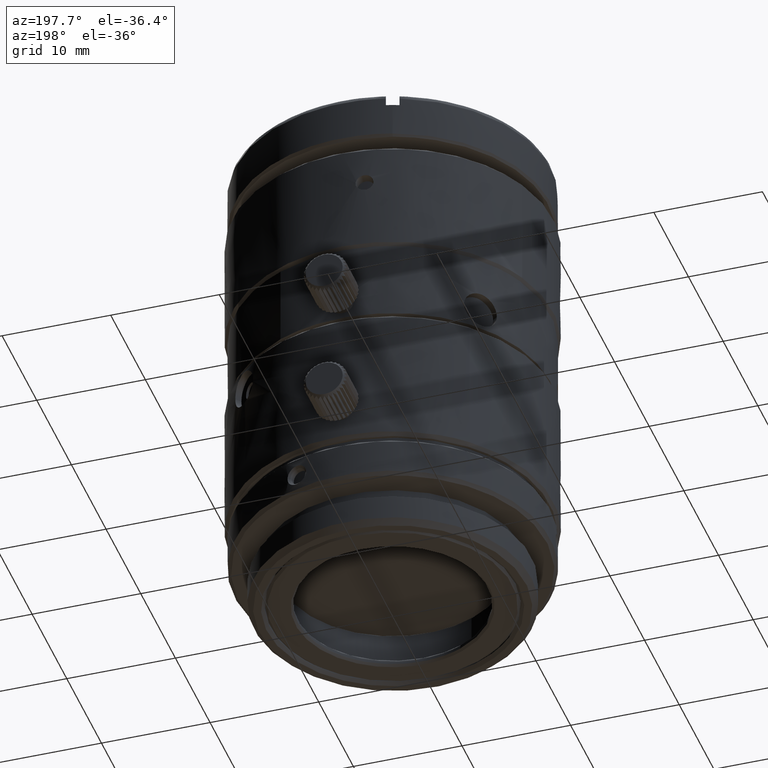
[diagram: clean part render]
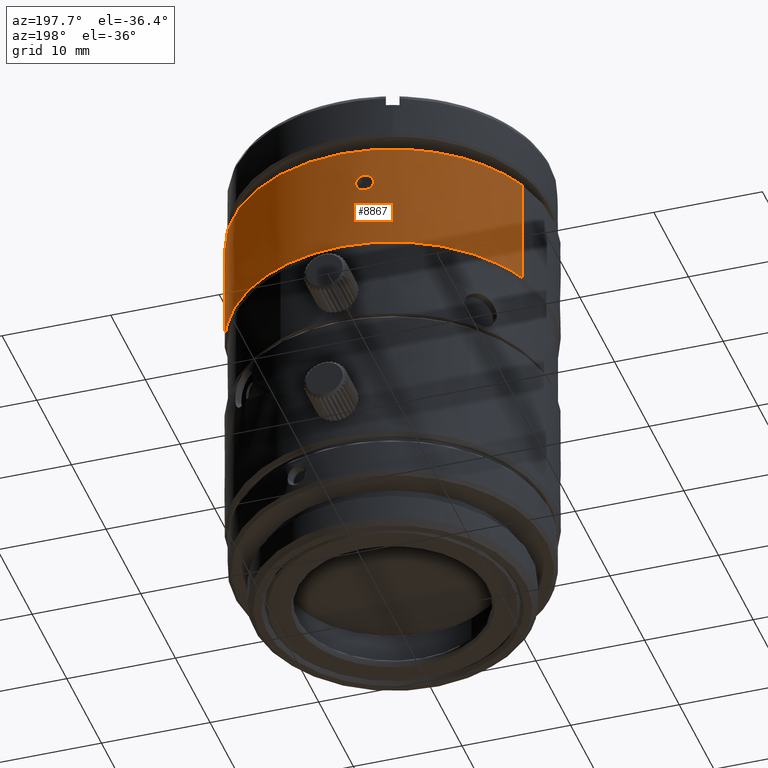
[diagram: same view with one face highlighted and labeled with its STEP entity id]
A machine part, auxiliary view. The second image highlights one B-rep face of the part: STEP entity #8867.
In plain terms, the highlighted face is a freeform B-spline surface patch.
Its self-contained STEP definition (entity closure, byte-faithful):
#84 = CARTESIAN_POINT ( 'NONE',  ( -2.510171961538005370, 14.53518397438364396, 15.50346821409464049 ) ) ;
#165 = CARTESIAN_POINT ( 'NONE',  ( 13.68235708167017961, -5.509592062819060665, 14.01599700981326002 ) ) ;
#456 = CARTESIAN_POINT ( 'NONE',  ( -2.702632383981752540, 14.50052992457775147, 15.29520256685601431 ) ) ;
#555 = CARTESIAN_POINT ( 'NONE',  ( -13.68235708288267993, 5.509592059807990161, 8.215997007999998658 ) ) ;
#877 = CARTESIAN_POINT ( 'NONE',  ( 5.509592059193701985, 13.68235708313003762, 8.215997007999998658 ) ) ;
#1067 = CARTESIAN_POINT ( 'NONE',  ( 13.52453127456312743, 10.45491277747261272, 8.215997007999998658 ) ) ;
#1451 = CARTESIAN_POINT ( 'NONE',  ( 13.68235708200000111, -5.509592062000000290, 8.215997007999998658 ) ) ;
#1520 = CARTESIAN_POINT ( 'NONE',  ( 24.70154119557608752, 21.85512209029655395, 18.31599700800000008 ) ) ;
#1640 = CARTESIAN_POINT ( 'NONE',  ( -10.45491278024653603, 13.52453127241879471, 8.215997007999998658 ) ) ;
#1643 = CARTESIAN_POINT ( 'NONE',  ( 16.90980138930131815, 2.505347152707465774, 18.31599700800000008 ) ) ;
#1714 = CARTESIAN_POINT ( 'NONE',  ( -2.663172951013787149, 32.87430621095294470, 18.31599700800003561 ) ) ;
#1773 = CARTESIAN_POINT ( 'NONE',  ( -1.373972029579923815, 14.68645186446025086, 14.42582035878723978 ) ) ;
#2280 = CARTESIAN_POINT ( 'NONE',  ( 13.96104301061989972, -4.759388411874649449, 14.81599773794271968 ) ) ;
#2373 = CARTESIAN_POINT ( 'NONE',  ( -13.68235708288267993, 5.509592059807990161, 8.215997007999998658 ) ) ;
#3154 = CARTESIAN_POINT ( 'NONE',  ( 13.83162624774647398, -5.119527018967283460, 15.52977915684697940 ) ) ;
#3184 = CARTESIAN_POINT ( 'NONE',  ( -2.718128051092274067, 14.49771330464822761, 15.27336886815965755 ) ) ;
#3261 = CARTESIAN_POINT ( 'NONE',  ( -13.68235708200000111, 5.509592062000000290, 18.31599700800000008 ) ) ;
#3287 = CARTESIAN_POINT ( 'NONE',  ( 13.68235708200000111, -5.509592062000000290, 18.31599700800000008 ) ) ;
#3473 = EDGE_LOOP ( 'NONE', ( #24232, #24050 ) ) ;
#3705 = EDGE_CURVE ( 'NONE', #5295, #14126, #22985, .T. ) ;
#3720 = CARTESIAN_POINT ( 'NONE',  ( 13.68235708167017961, -5.509592062819060665, 14.01599700981326002 ) ) ;
#3984 = CARTESIAN_POINT ( 'NONE',  ( 13.52453127456312743, 10.45491277747261272, 18.31599700800000008 ) ) ;
#4170 = CARTESIAN_POINT ( 'NONE',  ( 13.68235708288267993, -5.509592059807990161, 8.215997007999998658 ) ) ;
#4364 = B_SPLINE_CURVE_WITH_KNOTS ( 'NONE', 3,
 ( #32640, #6069, #29734, #3154, #37220, #28484 ),
 .UNSPECIFIED., .F., .F.,
 ( 4, 2, 4 ),
 ( -1.000000000000000000, -0.5000000000000000000, 0.0000000000000000000 ),
 .UNSPECIFIED. ) ;
#4705 = EDGE_CURVE ( 'NONE', #31270, #28773, #21444, .T. ) ;
#5241 = ORIENTED_EDGE ( 'NONE', *, *, #22075, .T. ) ;
#5269 = CARTESIAN_POINT ( 'NONE',  ( -1.494408212383117496, 14.67412473571639708, 14.26442182941332248 ) ) ;
#5295 = VERTEX_POINT ( 'NONE', #3287 ) ;
#5425 =( BOUNDED_SURFACE ( )  B_SPLINE_SURFACE ( 1, 3, ( 
 ( #1451, #21638, #24732, #877, #16210, #33846, #13305 ),
 ( #10393, #1643, #3984, #12736, #10004, #30552, #6707 ) ),
 .UNSPECIFIED., .F., .F., .T. ) 
 B_SPLINE_SURFACE_WITH_KNOTS ( ( 2, 2 ),
 ( 4, 3, 4 ),
 ( 0.0000000000000000000, 1.000000000000000000 ),
 ( 0.0000000000000000000, 0.5000000000000000000, 1.000000000000000000 ),
 .UNSPECIFIED. ) 
 GEOMETRIC_REPRESENTATION_ITEM ( )  RATIONAL_B_SPLINE_SURFACE ( (
 ( 1.000000000000000000, 0.8047378540760217192, 0.8047378540760217192, 1.000000000000000000, 0.8047378540760217192, 0.8047378540760217192, 1.000000000000000000),
 ( 1.000000000000000000, 0.8047378540760217192, 0.8047378540760217192, 1.000000000000000000, 0.8047378540760217192, 0.8047378540760217192, 1.000000000000000000) ) ) 
 REPRESENTATION_ITEM ( '' )  SURFACE ( )  );
#5460 = CARTESIAN_POINT ( 'NONE',  ( -1.432988357484741737, 14.68046783499956653, 14.33678850250993442 ) ) ;
#5625 = ORIENTED_EDGE ( 'NONE', *, *, #33989, .F. ) ;
#5655 = CARTESIAN_POINT ( 'NONE',  ( -1.762343370735848902, 14.64442372697684647, 14.07096678214888641 ) ) ;
#5906 = CARTESIAN_POINT ( 'NONE',  ( -2.130099246301348614, 14.59599781765056115, 15.61386800773115802 ) ) ;
#6069 = CARTESIAN_POINT ( 'NONE',  ( 13.96439915026572898, -4.760741090994568658, 15.02544015995241722 ) ) ;
#6092 = CARTESIAN_POINT ( 'NONE',  ( 13.68235708288267993, -5.509592059807990161, 8.215997007999998658 ) ) ;
#6096 = CARTESIAN_POINT ( 'NONE',  ( -2.760988194167336207, 14.48987952653167177, 15.20616834776457260 ) ) ;
#6286 = CARTESIAN_POINT ( 'NONE',  ( -2.677624921917699297, 14.50505588459305883, 15.32688689384857739 ) ) ;
#6476 = CARTESIAN_POINT ( 'NONE',  ( -2.858869271753773589, 14.47101093511898462, 14.91363028486599163 ) ) ;
#6703 = CARTESIAN_POINT ( 'NONE',  ( 5.509592059193705538, 13.68235708313003762, 8.215997007999998658 ) ) ;
#6707 = CARTESIAN_POINT ( 'NONE',  ( -13.68235708426007591, 5.509592056387402792, 18.31599700800000008 ) ) ;
#8184 = CARTESIAN_POINT ( 'NONE',  ( -2.773975575617607880, 14.48645444117531866, 14.39840232904322193 ) ) ;
#8211 = CARTESIAN_POINT ( 'NONE',  ( 13.68235708200000111, -5.509592062000000290, 18.31599700800000008 ) ) ;
#8466 = CARTESIAN_POINT ( 'NONE',  ( 13.68235671890329996, -5.509592962936210370, 15.61599700600589991 ) ) ;
#8728 = CARTESIAN_POINT ( 'NONE',  ( 13.68235708167017961, -5.509592062819060665, 14.01599700981326002 ) ) ;
#8867 = ADVANCED_FACE ( 'NONE', ( #16404, #12928 ), #5425, .F. ) ;
#9014 = CARTESIAN_POINT ( 'NONE',  ( -2.841117835849578555, 14.47478396259778854, 15.01448627977148220 ) ) ;
#9213 = CARTESIAN_POINT ( 'NONE',  ( -2.077727902202513466, 14.60312062472476313, 15.61596287199211019 ) ) ;
#10004 = CARTESIAN_POINT ( 'NONE',  ( -2.505347156175723899, 16.90980138878746075, 18.31599700800000008 ) ) ;
#10393 = CARTESIAN_POINT ( 'NONE',  ( 13.68235708200000111, -5.509592062000000290, 18.31599700800000008 ) ) ;
#10518 = CARTESIAN_POINT ( 'NONE',  ( -1.274699550725489461, 14.69552439815995193, 14.71835924852884503 ) ) ;
#10628 = EDGE_CURVE ( 'NONE', #19503, #21751, #37608, .T. ) ;
#10916 = CARTESIAN_POINT ( 'NONE',  ( -2.052892468005104831, 14.60679100670125052, 14.01614781844916457 ) ) ;
#11110 = CARTESIAN_POINT ( 'NONE',  ( -1.499130440670535247, 14.67363399988479422, 14.25948013249023560 ) ) ;
#11306 = CARTESIAN_POINT ( 'NONE',  ( -2.061788495310025837, 14.60537958901637623, 14.01603114242295689 ) ) ;
#11498 = CARTESIAN_POINT ( 'NONE',  ( -2.044023044424595703, 14.60812783332767495, 14.01639369095790144 ) ) ;
#12039 = CARTESIAN_POINT ( 'NONE',  ( 13.93521529335730769, -4.835651439248885630, 14.45111601339742258 ) ) ;
#12129 = CARTESIAN_POINT ( 'NONE',  ( -2.858770232050260152, 14.47031211707080089, 14.81599700978543943 ) ) ;
#12318 = CARTESIAN_POINT ( 'NONE',  ( -2.071925264998574878, 14.60381209559547777, 15.61599478638541250 ) ) ;
#12736 = CARTESIAN_POINT ( 'NONE',  ( 5.509592059193701985, 13.68235708313003762, 18.31599700800000008 ) ) ;
#12926 = CARTESIAN_POINT ( 'NONE',  ( -13.68235708288267993, 5.509592059807990161, 8.215997007999998658 ) ) ;
#12928 = FACE_BOUND ( 'NONE', #3473, .T. ) ;
#13305 = CARTESIAN_POINT ( 'NONE',  ( -13.68235708426007591, 5.509592056387402792, 8.215997007999998658 ) ) ;
#13808 = CARTESIAN_POINT ( 'NONE',  ( -2.009501014430903787, 14.61308928398296203, 14.01812594455499195 ) ) ;
#14011 = CARTESIAN_POINT ( 'NONE',  ( -2.067554633213657400, 14.60443150988313299, 14.01599922950407517 ) ) ;
#14126 = VERTEX_POINT ( 'NONE', #3261 ) ;
#14369 = CARTESIAN_POINT ( 'NONE',  ( 13.81442355897807772, -5.169526133471508800, 14.09635102530004502 ) ) ;
#15030 = CARTESIAN_POINT ( 'NONE',  ( -1.861575237995179100, 14.62778759045199628, 15.61600127618130784 ) ) ;
#15960 = EDGE_CURVE ( 'NONE', #14126, #16903, #30142, .T. ) ;
#16208 = CARTESIAN_POINT ( 'NONE',  ( 16.90980138930131815, 2.505347152707465774, 8.215997007999998658 ) ) ;
#16210 = CARTESIAN_POINT ( 'NONE',  ( -2.505347156175723899, 16.90980138878746075, 8.215997008000000434 ) ) ;
#16404 = FACE_OUTER_BOUND ( 'NONE', #26990, .T. ) ;
#16903 = VERTEX_POINT ( 'NONE', #555 ) ;
#17116 = CARTESIAN_POINT ( 'NONE',  ( -2.065289711901477698, 14.60480649856273239, 14.01600885390992168 ) ) ;
#17316 = CARTESIAN_POINT ( 'NONE',  ( -1.349961342531205810, 14.68881784347952113, 14.47288103471063714 ) ) ;
#17750 = CARTESIAN_POINT ( 'NONE',  ( -2.114974200163186158, 14.59816640502360841, 15.61480209770354932 ) ) ;
#17899 = CARTESIAN_POINT ( 'NONE',  ( 13.68235708288267993, -5.509592059807990161, 8.215997007999998658 ) ) ;
#18127 = CARTESIAN_POINT ( 'NONE',  ( -2.225003586516226317, 14.58163376863335259, 15.60224240979660948 ) ) ;
#18308 = CARTESIAN_POINT ( 'NONE',  ( -2.095557698388448298, 14.60082423077474090, 15.61560030978536950 ) ) ;
#18495 = CARTESIAN_POINT ( 'NONE',  ( -2.641866807895236757, 14.51150344150846117, 15.36757187260176849 ) ) ;
#18546 = VERTEX_POINT ( 'NONE', #6092 ) ;
#19503 = VERTEX_POINT ( 'NONE', #165 ) ;
#19626 = CARTESIAN_POINT ( 'NONE',  ( -1.417320566133512649, 14.68206782213047745, 14.35862153892938231 ) ) ;
#19821 = CARTESIAN_POINT ( 'NONE',  ( -2.858770232050260152, 14.47031211707080089, 14.81599700978543943 ) ) ;
#20014 = CARTESIAN_POINT ( 'NONE',  ( -2.858983045511999332, 14.47181372388592457, 14.60655478058519208 ) ) ;
#20035 = ORIENTED_EDGE ( 'NONE', *, *, #10628, .F. ) ;
#20214 = CARTESIAN_POINT ( 'NONE',  ( -13.68235708200000111, 5.509592062000000290, 18.31599700800000008 ) ) ;
#20278 = ORIENTED_EDGE ( 'NONE', *, *, #34756, .F. ) ;
#20554 = CARTESIAN_POINT ( 'NONE',  ( 13.91543043906188259, -4.892057415611328786, 14.34445540907368333 ) ) ;
#20836 = CARTESIAN_POINT ( 'NONE',  ( -2.784710588302729217, 14.48548060754698952, 15.15910692790477654 ) ) ;
#21220 = CARTESIAN_POINT ( 'NONE',  ( -2.637193997516302790, 14.51234420968945216, 15.37251376885984122 ) ) ;
#21444 = B_SPLINE_CURVE_WITH_KNOTS ( 'NONE', 3,
 ( #12129, #6476, #9014, #20836, #6096, #3184, #456, #6286, #26475, #23939, #18495, #21220, #32478, #84, #27043, #18127, #29762, #5906, #17750, #18308, #35385, #9213, #29569, #12318, #24129, #15030, #29953, #35956, #30141, #36143 ),
 .UNSPECIFIED., .F., .F.,
 ( 4, 2, 2, 2, 1, 1, 2, 2, 2, 2, 2, 1, 1, 2, 2, 2, 4 ),
 ( -1.000000000000000000, -0.8749999999999523714, -0.8124999999999285016, -0.7812499999999173994, -0.7656249999999118483, -0.7578124999999091838, -0.7539062499999086286, -0.7499999999999081846, -0.6249999999999061862, -0.5624999999999054090, -0.5312499999999049649, -0.5156249999999047429, -0.5078124999999050759, -0.5039062499999058531, -0.4999999999999066302, -0.2499999999999532596, 0.0000000000000000000 ),
 .UNSPECIFIED. ) ;
#21638 = CARTESIAN_POINT ( 'NONE',  ( 16.90980138930131815, 2.505347152707465774, 8.215997008000000434 ) ) ;
#21751 = VERTEX_POINT ( 'NONE', #2280 ) ;
#22075 = EDGE_CURVE ( 'NONE', #18546, #16903, #37552, .T. ) ;
#22336 = CARTESIAN_POINT ( 'NONE',  ( -1.292801994185632353, 14.69421619694997894, 14.61750117506936597 ) ) ;
#22470 = CARTESIAN_POINT ( 'NONE',  ( 13.68235708200000111, -5.509592062000000290, 18.31599700800000008 ) ) ;
#22514 = B_SPLINE_CURVE_WITH_KNOTS ( 'NONE', 1,
 ( #22949, #8211 ),
 .UNSPECIFIED., .F., .F.,
 ( 2, 2 ),
 ( -1.000000000000000000, 0.0000000000000000000 ),
 .UNSPECIFIED. ) ;
#22718 = CARTESIAN_POINT ( 'NONE',  ( -2.276283047852937003, 14.56901427491048473, 14.01599273973278770 ) ) ;
#22917 = CARTESIAN_POINT ( 'NONE',  ( -2.066488092169253665, 14.60461483135285476, 14.01599707481350521 ) ) ;
#22943 = ORIENTED_EDGE ( 'NONE', *, *, #3705, .F. ) ;
#22949 = CARTESIAN_POINT ( 'NONE',  ( 13.68235671890329996, -5.509592962936210370, 15.61599700600589991 ) ) ;
#22985 =( BOUNDED_CURVE ( )  B_SPLINE_CURVE ( 3, ( #22470, #1520, #1714, #25187 ),
 .UNSPECIFIED., .F., .T. ) 
 B_SPLINE_CURVE_WITH_KNOTS ( ( 4, 4 ),
 ( -9.041964601607240581, -5.900371948017450130 ),
 .UNSPECIFIED. ) 
 CURVE ( )  GEOMETRIC_REPRESENTATION_ITEM ( )  RATIONAL_B_SPLINE_CURVE ( ( 1.000000000000000000, 0.3333333335299309419, 0.3333333335299309419, 1.000000000000000000 ) ) 
 REPRESENTATION_ITEM ( '' )  );
#23080 = CARTESIAN_POINT ( 'NONE',  ( 13.96104301061989972, -4.759388411874649449, 14.81599773794271968 ) ) ;
#23154 = B_SPLINE_CURVE_WITH_KNOTS ( 'NONE', 3,
 ( #25053, #10518, #22336, #17316, #1773, #19626, #5460, #34369, #34759, #37468, #5269, #11110, #32230, #37662, #5655, #26028, #28346, #13808, #37856, #11498, #10916, #11306, #17116, #14011, #22917, #22718, #29128, #8184, #20014, #19821 ),
 .UNSPECIFIED., .F., .F.,
 ( 4, 2, 2, 2, 1, 1, 2, 2, 2, 2, 2, 1, 1, 2, 2, 2, 4 ),
 ( -1.000000000000000000, -0.8750000000000394129, -0.8125000000000600631, -0.7812500000000704992, -0.7656250000000757172, -0.7578125000000776046, -0.7539062500000778266, -0.7500000000000781597, -0.6250000000000666134, -0.5625000000000608402, -0.5312500000000583977, -0.5156250000000570655, -0.5078125000000560663, -0.5039062500000557332, -0.5000000000000555112, -0.2500000000000277556, 0.0000000000000000000 ),
 .UNSPECIFIED. ) ;
#23461 = ORIENTED_EDGE ( 'NONE', *, *, #15960, .F. ) ;
#23851 = CARTESIAN_POINT ( 'NONE',  ( 13.96104327937397827, -4.759388521268310690, 14.73993362206599045 ) ) ;
#23939 = CARTESIAN_POINT ( 'NONE',  ( -2.648822995695009119, 14.51025139937331154, 15.36011974916755207 ) ) ;
#24050 = ORIENTED_EDGE ( 'NONE', *, *, #32074, .F. ) ;
#24129 = CARTESIAN_POINT ( 'NONE',  ( -2.073000690876769969, 14.60369185131684944, 15.61599694118784143 ) ) ;
#24232 = ORIENTED_EDGE ( 'NONE', *, *, #4705, .F. ) ;
#24616 = ORIENTED_EDGE ( 'NONE', *, *, #35587, .F. ) ;
#24729 = CARTESIAN_POINT ( 'NONE',  ( -2.505347156175719903, 16.90980138878746786, 8.215997007999998658 ) ) ;
#24732 = CARTESIAN_POINT ( 'NONE',  ( 13.52453127456312743, 10.45491277747261272, 8.215997008000000434 ) ) ;
#25053 = CARTESIAN_POINT ( 'NONE',  ( -1.274600489597400133, 14.69482540207101984, 14.81599700961455746 ) ) ;
#25187 = CARTESIAN_POINT ( 'NONE',  ( -13.68235708200000111, 5.509592062000000290, 18.31599700800000008 ) ) ;
#25302 = CARTESIAN_POINT ( 'NONE',  ( -2.858770232050260152, 14.47031211707080089, 14.81599700978543943 ) ) ;
#25628 = VERTEX_POINT ( 'NONE', #8466 ) ;
#26028 = CARTESIAN_POINT ( 'NONE',  ( -1.914343119330938148, 14.62566138641414959, 14.02975135281371344 ) ) ;
#26185 = CARTESIAN_POINT ( 'NONE',  ( 13.85161883666245686, -5.069919020073262672, 14.15576623366484199 ) ) ;
#26475 = CARTESIAN_POINT ( 'NONE',  ( -2.664680599566337182, 14.50739406557919509, 15.34246245460903424 ) ) ;
#26990 = EDGE_LOOP ( 'NONE', ( #23461, #22943, #20278, #24616, #20035, #5625, #5241 ) ) ;
#27043 = CARTESIAN_POINT ( 'NONE',  ( -2.376230910114701889, 14.55742185951107004, 15.56102674346885095 ) ) ;
#28346 = CARTESIAN_POINT ( 'NONE',  ( -1.957643664718974552, 14.62010063318119357, 14.02327518372916870 ) ) ;
#28484 = CARTESIAN_POINT ( 'NONE',  ( 13.68235671890329996, -5.509592962936210370, 15.61599700600589991 ) ) ;
#28773 = VERTEX_POINT ( 'NONE', #32172 ) ;
#28904 = CARTESIAN_POINT ( 'NONE',  ( 13.74403108206113977, -5.354013490064462033, 14.02672597813931077 ) ) ;
#29128 = CARTESIAN_POINT ( 'NONE',  ( -2.481722581457019849, 14.53518269189291168, 14.10220930845654053 ) ) ;
#29569 = CARTESIAN_POINT ( 'NONE',  ( -2.074205243179204849, 14.60354297213321217, 15.61598516152807115 ) ) ;
#29734 = CARTESIAN_POINT ( 'NONE',  ( 13.93555019504206882, -4.842070945244778102, 15.23358879971384994 ) ) ;
#29762 = CARTESIAN_POINT ( 'NONE',  ( -2.181862982256032701, 14.58832370468452666, 15.60871867352442699 ) ) ;
#29953 = CARTESIAN_POINT ( 'NONE',  ( -1.654825249971180190, 14.65237258285974242, 15.52978470738227834 ) ) ;
#30141 = CARTESIAN_POINT ( 'NONE',  ( -1.274813254979739741, 14.69632669714021311, 15.02543923561997552 ) ) ;
#30142 = B_SPLINE_CURVE_WITH_KNOTS ( 'NONE', 1,
 ( #20214, #2373 ),
 .UNSPECIFIED., .F., .F.,
 ( 2, 2 ),
 ( -1.000000000000000000, 0.0000000000000000000 ),
 .UNSPECIFIED. ) ;
#30552 = CARTESIAN_POINT ( 'NONE',  ( -10.45491278024654314, 13.52453127241878761, 18.31599700800000008 ) ) ;
#31270 = VERTEX_POINT ( 'NONE', #25302 ) ;
#32074 = EDGE_CURVE ( 'NONE', #28773, #31270, #23154, .T. ) ;
#32172 = CARTESIAN_POINT ( 'NONE',  ( -1.274600489597400133, 14.69482540207101984, 14.81599700961455746 ) ) ;
#32193 = CARTESIAN_POINT ( 'NONE',  ( 13.71080185562232856, -5.438953156371375108, 14.01599700828889006 ) ) ;
#32230 = CARTESIAN_POINT ( 'NONE',  ( -1.500043796756811654, 14.67353911264441102, 14.25851714810034565 ) ) ;
#32383 = CARTESIAN_POINT ( 'NONE',  ( 13.95788677361053942, -4.769652097819154335, 14.64872112397831216 ) ) ;
#32478 = CARTESIAN_POINT ( 'NONE',  ( -2.636290031079560503, 14.51250688768442743, 15.37347697452626605 ) ) ;
#32640 = CARTESIAN_POINT ( 'NONE',  ( 13.96104301061989972, -4.759388411874649449, 14.81599773794271968 ) ) ;
#33846 = CARTESIAN_POINT ( 'NONE',  ( -10.45491278024654314, 13.52453127241878761, 8.215997008000000434 ) ) ;
#33989 = EDGE_CURVE ( 'NONE', #18546, #19503, #34120, .T. ) ;
#34120 = B_SPLINE_CURVE_WITH_KNOTS ( 'NONE', 1,
 ( #17899, #3720 ),
 .UNSPECIFIED., .F., .F.,
 ( 2, 2 ),
 ( -1.000000000000000000, 0.0000000000000000000 ),
 .UNSPECIFIED. ) ;
#34369 = CARTESIAN_POINT ( 'NONE',  ( -1.458267950825449244, 14.67786691182261549, 14.30510526003396699 ) ) ;
#34756 = EDGE_CURVE ( 'NONE', #25628, #5295, #22514, .T. ) ;
#34759 = CARTESIAN_POINT ( 'NONE',  ( -1.471351825169679328, 14.67651627114794444, 14.28953026413211802 ) ) ;
#35385 = CARTESIAN_POINT ( 'NONE',  ( -2.086665961734931241, 14.60200455734886660, 15.61584619106796268 ) ) ;
#35587 = EDGE_CURVE ( 'NONE', #21751, #25628, #4364, .T. ) ;
#35956 = CARTESIAN_POINT ( 'NONE',  ( -1.360541263142471591, 14.68677011140773558, 15.23359168693670362 ) ) ;
#36143 = CARTESIAN_POINT ( 'NONE',  ( -1.274600489597400133, 14.69482540207101984, 14.81599700961455746 ) ) ;
#37220 = CARTESIAN_POINT ( 'NONE',  ( 13.75723253097776144, -5.313961379611598979, 15.61599700854532280 ) ) ;
#37468 = CARTESIAN_POINT ( 'NONE',  ( -1.487378332539520676, 14.67485485720225746, 14.27187365496809690 ) ) ;
#37552 =( BOUNDED_CURVE ( )  B_SPLINE_CURVE ( 3, ( #4170, #16208, #1067, #6703, #24729, #1640, #12926 ),
 .UNSPECIFIED., .F., .F. ) 
 B_SPLINE_CURVE_WITH_KNOTS ( ( 4, 3, 4 ),
 ( -9.041964601607240581, -7.471168274812345800, -5.900371948017450130 ),
 .UNSPECIFIED. ) 
 CURVE ( )  GEOMETRIC_REPRESENTATION_ITEM ( )  RATIONAL_B_SPLINE_CURVE ( ( 1.000000000000000000, 0.8047378540760217192, 0.8047378540760217192, 1.000000000000000000, 0.8047378540760217192, 0.8047378540760217192, 1.000000000000000000 ) ) 
 REPRESENTATION_ITEM ( '' )  );
#37608 = B_SPLINE_CURVE_WITH_KNOTS ( 'NONE', 3,
 ( #8728, #32193, #28904, #14369, #26185, #20554, #12039, #32383, #23851, #23080 ),
 .UNSPECIFIED., .F., .F.,
 ( 4, 2, 2, 2, 4 ),
 ( 0.0000000000000000000, 0.2500000000000000000, 0.5000000000000000000, 0.7500000000000000000, 1.000000000000000000 ),
 .UNSPECIFIED. ) ;
#37662 = CARTESIAN_POINT ( 'NONE',  ( -1.627497146527618233, 14.66027921863081751, 14.12852521867178446 ) ) ;
#37856 = CARTESIAN_POINT ( 'NONE',  ( -2.024632882463525796, 14.61096978274707325, 14.01719187914902776 ) ) ;